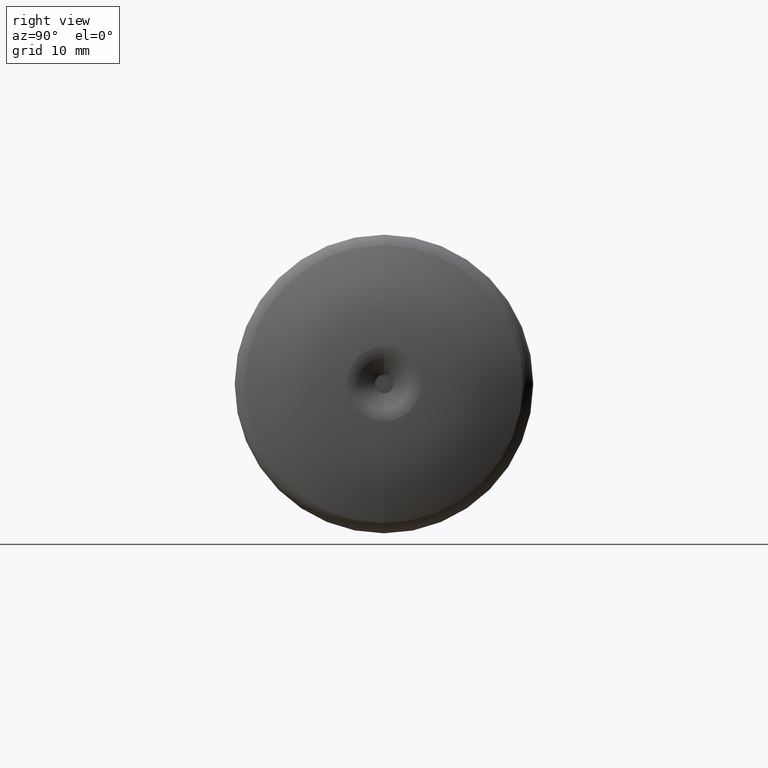
[diagram: clean part render]
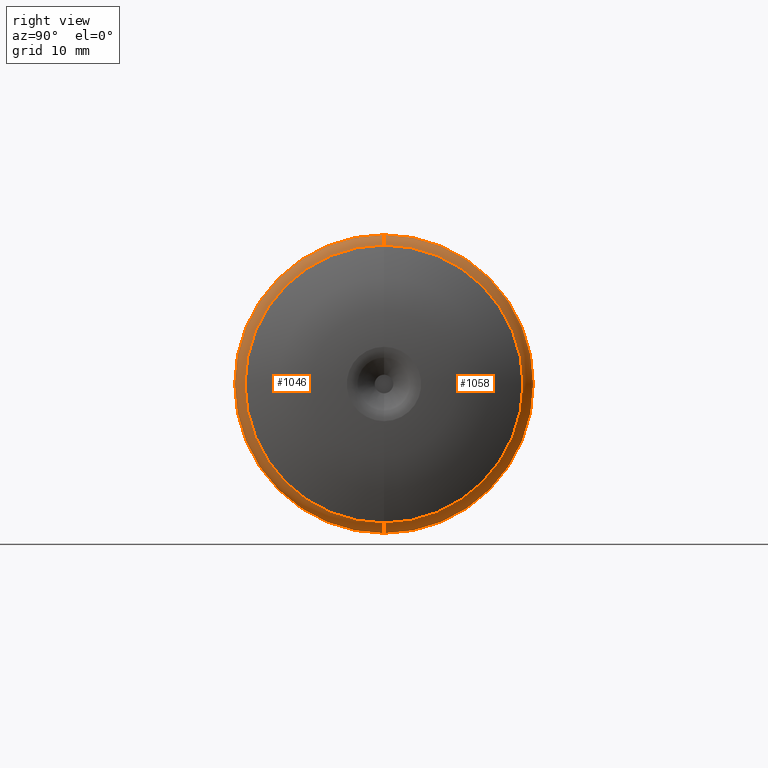
[diagram: same view with one multi-face feature highlighted, each face labeled with its STEP entity id]
A machine part, right view. The highlighted faces form ONE feature: a constant-radius fillet chain: 2 tangent blend faces with common blend radius 1.9211 mm. The faces share edges in the B-rep.
Their STEP definitions:
[1] entity #1058 (Torus):
#20 = DIRECTION ( 'NONE',  ( 1.000000000000000000, -0.0000000000000000000, -0.0000000000000000000 ) ) ;
#105 = DIRECTION ( 'NONE',  ( 0.0000000000000000000, 0.0000000000000000000, -1.000000000000000000 ) ) ;
#107 = CARTESIAN_POINT ( 'NONE',  ( -2.815400620329743900, 0.0000000000000000000, 0.0000000000000000000 ) ) ;
#181 = CIRCLE ( 'NONE', #462, 15.99731339575200400 ) ;
#182 = CIRCLE ( 'NONE', #563, 14.89095758435058600 ) ;
#191 = CIRCLE ( 'NONE', #541, 1.921096558933488700 ) ;
#249 = ORIENTED_EDGE ( 'NONE', *, *, #557, .F. ) ;
#257 = ORIENTED_EDGE ( 'NONE', *, *, #562, .T. ) ;
#271 = ORIENTED_EDGE ( 'NONE', *, *, #581, .F. ) ;
#373 = CIRCLE ( 'NONE', #452, 1.921096558933488700 ) ;
#405 = EDGE_CURVE ( 'NONE', #879, #678, #373, .T. ) ;
#452 = AXIS2_PLACEMENT_3D ( 'NONE', #695, #694, #693 ) ;
#462 = AXIS2_PLACEMENT_3D ( 'NONE', #908, #979, #903 ) ;
#499 = AXIS2_PLACEMENT_3D ( 'NONE', #107, #20, #105 ) ;
#541 = AXIS2_PLACEMENT_3D ( 'NONE', #957, #913, #989 ) ;
#557 = EDGE_CURVE ( 'NONE', #677, #678, #182, .T. ) ;
#562 = EDGE_CURVE ( 'NONE', #850, #879, #181, .T. ) ;
#563 = AXIS2_PLACEMENT_3D ( 'NONE', #1009, #922, #934 ) ;
#581 = EDGE_CURVE ( 'NONE', #850, #677, #191, .T. ) ;
#600 = EDGE_LOOP ( 'NONE', ( #257, #639, #249, #271 ) ) ;
#639 = ORIENTED_EDGE ( 'NONE', *, *, #405, .T. ) ;
#677 = VERTEX_POINT ( 'NONE', #984 ) ;
#678 = VERTEX_POINT ( 'NONE', #1004 ) ;
#693 = DIRECTION ( 'NONE',  ( 0.0000000000000000000, 1.224646799147354900E-016, 1.000000000000000000 ) ) ;
#694 = DIRECTION ( 'NONE',  ( 0.0000000000000000000, 1.000000000000000000, -1.224646799147353200E-016 ) ) ;
#695 = CARTESIAN_POINT ( 'NONE',  ( -2.815400620329743900, 1.724441443705765400E-015, 14.08113298386431800 ) ) ;
#817 = CARTESIAN_POINT ( 'NONE',  ( -2.678052093420877800, 1.959240809003395100E-015, 15.99731339575200400 ) ) ;
#850 = VERTEX_POINT ( 'NONE', #955 ) ;
#879 = VERTEX_POINT ( 'NONE', #817 ) ;
#903 = DIRECTION ( 'NONE',  ( 0.0000000000000000000, 0.0000000000000000000, -1.000000000000000000 ) ) ;
#908 = CARTESIAN_POINT ( 'NONE',  ( -2.678052093420877800, 0.0000000000000000000, 0.0000000000000000000 ) ) ;
#913 = DIRECTION ( 'NONE',  ( -0.0000000000000000000, -1.000000000000000000, -0.0000000000000000000 ) ) ;
#922 = DIRECTION ( 'NONE',  ( 1.000000000000000000, -0.0000000000000000000, -0.0000000000000000000 ) ) ;
#934 = DIRECTION ( 'NONE',  ( 0.0000000000000000000, 0.0000000000000000000, -1.000000000000000000 ) ) ;
#955 = CARTESIAN_POINT ( 'NONE',  ( -2.678052093420877800, 0.0000000000000000000, -15.99731339575200400 ) ) ;
#957 = CARTESIAN_POINT ( 'NONE',  ( -2.815400620329743900, 0.0000000000000000000, -14.08113298386431800 ) ) ;
#979 = DIRECTION ( 'NONE',  ( 1.000000000000000000, -0.0000000000000000000, -0.0000000000000000000 ) ) ;
#984 = CARTESIAN_POINT ( 'NONE',  ( -1.073334001284034000, 0.0000000000000000000, -14.89095758435058600 ) ) ;
#989 = DIRECTION ( 'NONE',  ( 0.0000000000000000000, 0.0000000000000000000, -1.000000000000000000 ) ) ;
#1004 = CARTESIAN_POINT ( 'NONE',  ( -1.073334001284034000, 1.891361109348935600E-015, 14.89095758435058600 ) ) ;
#1009 = CARTESIAN_POINT ( 'NONE',  ( -1.073334001284034000, 0.0000000000000000000, 0.0000000000000000000 ) ) ;
#1058 = ADVANCED_FACE ( 'NONE', ( #1082 ), #1096, .T. ) ;
#1082 = FACE_OUTER_BOUND ( 'NONE', #600, .T. ) ;
#1096 = TOROIDAL_SURFACE ( 'NONE', #499, 14.08113298386431800, 1.921096558933490100 ) ;
[2] entity #1046 (Torus):
#29 = DIRECTION ( 'NONE',  ( 0.0000000000000000000, 0.0000000000000000000, -1.000000000000000000 ) ) ;
#191 = CIRCLE ( 'NONE', #541, 1.921096558933488700 ) ;
#318 = CIRCLE ( 'NONE', #505, 15.99731339575200400 ) ;
#352 = ORIENTED_EDGE ( 'NONE', *, *, #405, .F. ) ;
#365 = CIRCLE ( 'NONE', #493, 14.89095758435058600 ) ;
#373 = CIRCLE ( 'NONE', #452, 1.921096558933488700 ) ;
#395 = ORIENTED_EDGE ( 'NONE', *, *, #581, .T. ) ;
#405 = EDGE_CURVE ( 'NONE', #879, #678, #373, .T. ) ;
#407 = EDGE_CURVE ( 'NONE', #678, #677, #365, .T. ) ;
#427 = AXIS2_PLACEMENT_3D ( 'NONE', #935, #788, #29 ) ;
#452 = AXIS2_PLACEMENT_3D ( 'NONE', #695, #694, #693 ) ;
#493 = AXIS2_PLACEMENT_3D ( 'NONE', #691, #688, #687 ) ;
#505 = AXIS2_PLACEMENT_3D ( 'NONE', #766, #781, #972 ) ;
#514 = EDGE_CURVE ( 'NONE', #879, #850, #318, .T. ) ;
#541 = AXIS2_PLACEMENT_3D ( 'NONE', #957, #913, #989 ) ;
#581 = EDGE_CURVE ( 'NONE', #850, #677, #191, .T. ) ;
#593 = EDGE_LOOP ( 'NONE', ( #352, #623, #395, #634 ) ) ;
#623 = ORIENTED_EDGE ( 'NONE', *, *, #514, .T. ) ;
#634 = ORIENTED_EDGE ( 'NONE', *, *, #407, .F. ) ;
#677 = VERTEX_POINT ( 'NONE', #984 ) ;
#678 = VERTEX_POINT ( 'NONE', #1004 ) ;
#687 = DIRECTION ( 'NONE',  ( 0.0000000000000000000, 0.0000000000000000000, -1.000000000000000000 ) ) ;
#688 = DIRECTION ( 'NONE',  ( 1.000000000000000000, -0.0000000000000000000, -0.0000000000000000000 ) ) ;
#691 = CARTESIAN_POINT ( 'NONE',  ( -1.073334001284034000, 0.0000000000000000000, 0.0000000000000000000 ) ) ;
#693 = DIRECTION ( 'NONE',  ( 0.0000000000000000000, 1.224646799147354900E-016, 1.000000000000000000 ) ) ;
#694 = DIRECTION ( 'NONE',  ( 0.0000000000000000000, 1.000000000000000000, -1.224646799147353200E-016 ) ) ;
#695 = CARTESIAN_POINT ( 'NONE',  ( -2.815400620329743900, 1.724441443705765400E-015, 14.08113298386431800 ) ) ;
#766 = CARTESIAN_POINT ( 'NONE',  ( -2.678052093420877800, 0.0000000000000000000, 0.0000000000000000000 ) ) ;
#781 = DIRECTION ( 'NONE',  ( 1.000000000000000000, -0.0000000000000000000, -0.0000000000000000000 ) ) ;
#788 = DIRECTION ( 'NONE',  ( 1.000000000000000000, -0.0000000000000000000, -0.0000000000000000000 ) ) ;
#817 = CARTESIAN_POINT ( 'NONE',  ( -2.678052093420877800, 1.959240809003395100E-015, 15.99731339575200400 ) ) ;
#850 = VERTEX_POINT ( 'NONE', #955 ) ;
#879 = VERTEX_POINT ( 'NONE', #817 ) ;
#913 = DIRECTION ( 'NONE',  ( -0.0000000000000000000, -1.000000000000000000, -0.0000000000000000000 ) ) ;
#935 = CARTESIAN_POINT ( 'NONE',  ( -2.815400620329743900, 0.0000000000000000000, 0.0000000000000000000 ) ) ;
#955 = CARTESIAN_POINT ( 'NONE',  ( -2.678052093420877800, 0.0000000000000000000, -15.99731339575200400 ) ) ;
#957 = CARTESIAN_POINT ( 'NONE',  ( -2.815400620329743900, 0.0000000000000000000, -14.08113298386431800 ) ) ;
#972 = DIRECTION ( 'NONE',  ( 0.0000000000000000000, 0.0000000000000000000, -1.000000000000000000 ) ) ;
#984 = CARTESIAN_POINT ( 'NONE',  ( -1.073334001284034000, 0.0000000000000000000, -14.89095758435058600 ) ) ;
#989 = DIRECTION ( 'NONE',  ( 0.0000000000000000000, 0.0000000000000000000, -1.000000000000000000 ) ) ;
#1004 = CARTESIAN_POINT ( 'NONE',  ( -1.073334001284034000, 1.891361109348935600E-015, 14.89095758435058600 ) ) ;
#1046 = ADVANCED_FACE ( 'NONE', ( #1146 ), #1127, .T. ) ;
#1127 = TOROIDAL_SURFACE ( 'NONE', #427, 14.08113298386431800, 1.921096558933490100 ) ;
#1146 = FACE_OUTER_BOUND ( 'NONE', #593, .T. ) ;